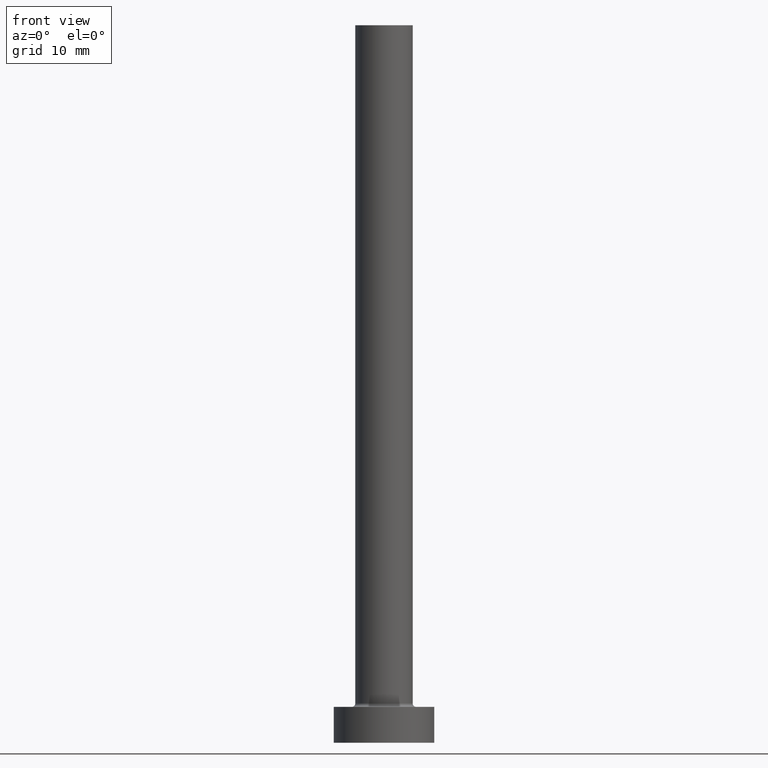
[diagram: clean part render]
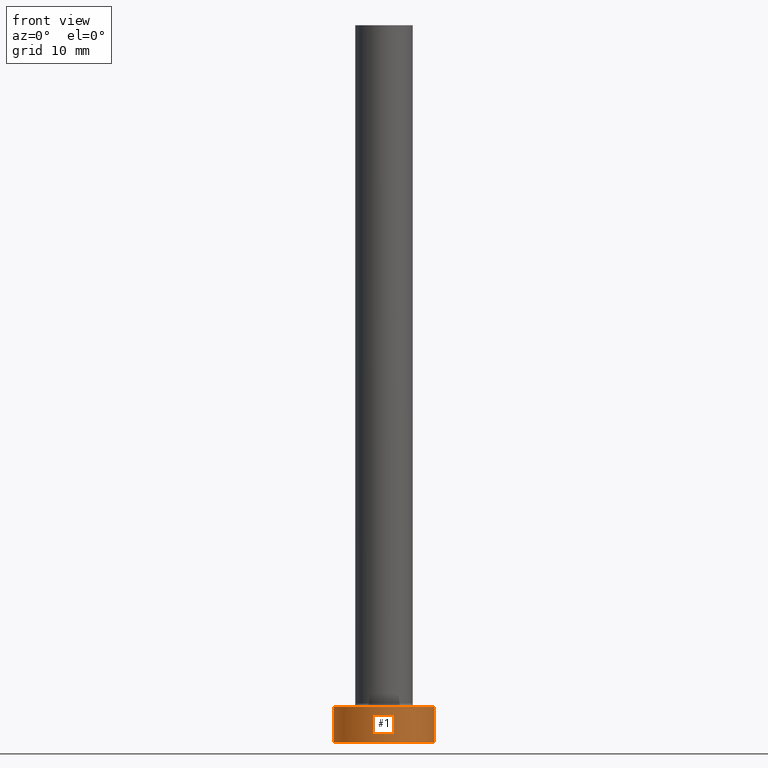
[diagram: same view with one face highlighted and labeled with its STEP entity id]
A machine part, front view. The second image highlights one B-rep face of the part: STEP entity #1.
In plain terms, the highlighted cylindrical surface (partial cylindrical patch) has radius 7 mm, axis along (-0, -0, -1).
Its self-contained STEP definition (entity closure, byte-faithful):
#1 = ADVANCED_FACE ( 'NONE', ( #53 ), #127, .T. ) ;
#27 = EDGE_CURVE ( 'NONE', #422, #368, #266, .T. ) ;
#48 = AXIS2_PLACEMENT_3D ( 'NONE', #82, #301, #437 ) ;
#53 = FACE_OUTER_BOUND ( 'NONE', #349, .T. ) ;
#59 = AXIS2_PLACEMENT_3D ( 'NONE', #136, #322, #182 ) ;
#77 = CIRCLE ( 'NONE', #130, 7.000000000000000000 ) ;
#82 = CARTESIAN_POINT ( 'NONE',  ( 0.000000000000000000, 0.000000000000000000, 5.000000000000000000 ) ) ;
#84 = VECTOR ( 'NONE', #242, 1000.000000000000000 ) ;
#86 = CARTESIAN_POINT ( 'NONE',  ( -7.000000000000000000, 0.000000000000000000, 5.000000000000000000 ) ) ;
#91 = DIRECTION ( 'NONE',  ( 0.000000000000000000, 0.000000000000000000, 1.000000000000000000 ) ) ;
#97 = EDGE_CURVE ( 'NONE', #186, #454, #277, .T. ) ;
#110 = VECTOR ( 'NONE', #455, 1000.000000000000000 ) ;
#115 = ORIENTED_EDGE ( 'NONE', *, *, #27, .T. ) ;
#116 = ORIENTED_EDGE ( 'NONE', *, *, #97, .F. ) ;
#127 = CYLINDRICAL_SURFACE ( 'NONE', #48, 7.000000000000000000 ) ;
#130 = AXIS2_PLACEMENT_3D ( 'NONE', #168, #91, #308 ) ;
#136 = CARTESIAN_POINT ( 'NONE',  ( 0.000000000000000000, 0.000000000000000000, 0.000000000000000000 ) ) ;
#168 = CARTESIAN_POINT ( 'NONE',  ( 0.000000000000000000, 0.000000000000000000, 5.000000000000000000 ) ) ;
#175 = CARTESIAN_POINT ( 'NONE',  ( -7.000000000000000000, 0.000000000000000000, 0.000000000000000000 ) ) ;
#182 = DIRECTION ( 'NONE',  ( 1.000000000000000000, 0.000000000000000000, 0.000000000000000000 ) ) ;
#186 = VERTEX_POINT ( 'NONE', #213 ) ;
#202 = CIRCLE ( 'NONE', #59, 7.000000000000000000 ) ;
#213 = CARTESIAN_POINT ( 'NONE',  ( 7.000000000000000000, 8.572527594031473190E-16, 5.000000000000000000 ) ) ;
#242 = DIRECTION ( 'NONE',  ( -0.000000000000000000, -0.000000000000000000, -1.000000000000000000 ) ) ;
#266 = LINE ( 'NONE', #86, #110 ) ;
#277 = LINE ( 'NONE', #381, #84 ) ;
#301 = DIRECTION ( 'NONE',  ( -0.000000000000000000, -0.000000000000000000, -1.000000000000000000 ) ) ;
#308 = DIRECTION ( 'NONE',  ( 1.000000000000000000, 0.000000000000000000, 0.000000000000000000 ) ) ;
#322 = DIRECTION ( 'NONE',  ( 0.000000000000000000, 0.000000000000000000, 1.000000000000000000 ) ) ;
#330 = ORIENTED_EDGE ( 'NONE', *, *, #398, .F. ) ;
#349 = EDGE_LOOP ( 'NONE', ( #116, #330, #115, #389 ) ) ;
#357 = CARTESIAN_POINT ( 'NONE',  ( -7.000000000000000000, 0.000000000000000000, 5.000000000000000000 ) ) ;
#365 = CARTESIAN_POINT ( 'NONE',  ( 7.000000000000000000, 8.572527594031473190E-16, 0.000000000000000000 ) ) ;
#368 = VERTEX_POINT ( 'NONE', #175 ) ;
#381 = CARTESIAN_POINT ( 'NONE',  ( 7.000000000000000000, 8.572527594031473190E-16, 5.000000000000000000 ) ) ;
#389 = ORIENTED_EDGE ( 'NONE', *, *, #404, .T. ) ;
#398 = EDGE_CURVE ( 'NONE', #422, #186, #77, .T. ) ;
#404 = EDGE_CURVE ( 'NONE', #368, #454, #202, .T. ) ;
#422 = VERTEX_POINT ( 'NONE', #357 ) ;
#437 = DIRECTION ( 'NONE',  ( -1.000000000000000000, 0.000000000000000000, 0.000000000000000000 ) ) ;
#454 = VERTEX_POINT ( 'NONE', #365 ) ;
#455 = DIRECTION ( 'NONE',  ( -0.000000000000000000, -0.000000000000000000, -1.000000000000000000 ) ) ;